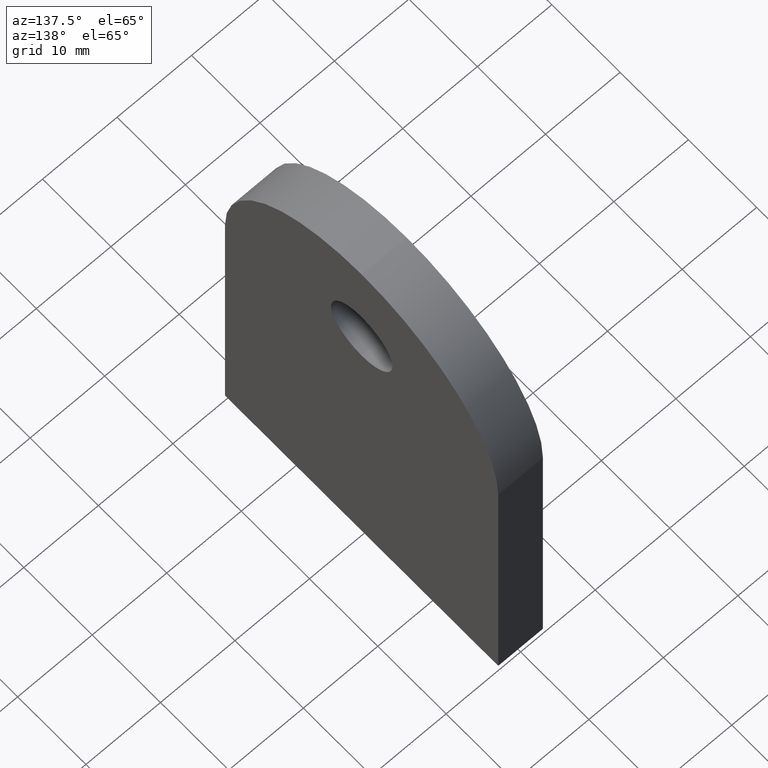
[diagram: clean part render]
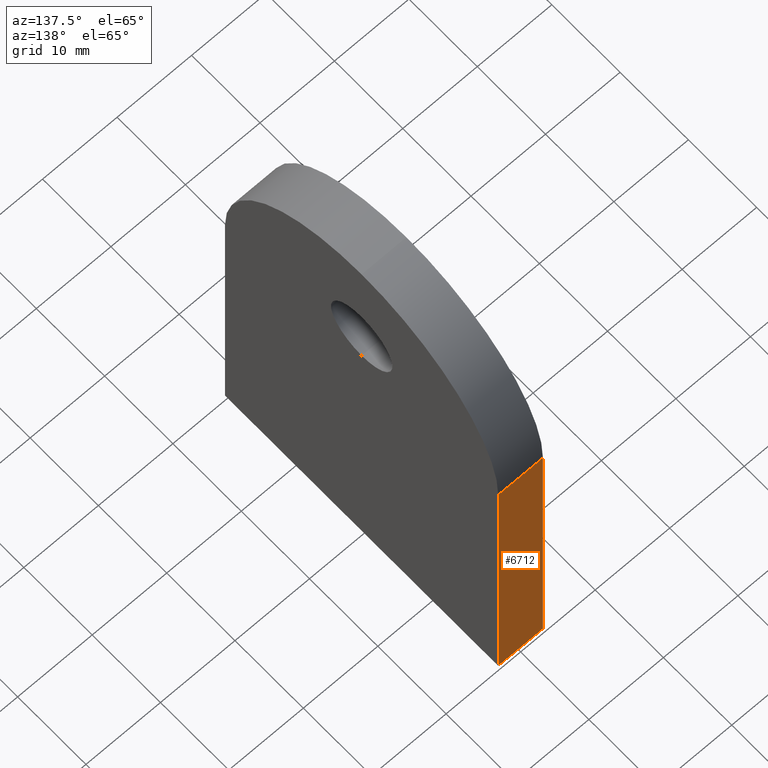
[diagram: same view with one face highlighted and labeled with its STEP entity id]
A machine part, auxiliary view. The second image highlights one B-rep face of the part: STEP entity #6712.
In plain terms, the highlighted planar face has unit normal (0, 1, -0).
Its self-contained STEP definition (entity closure, byte-faithful):
#1 = ORIENTED_EDGE ( 'NONE', *, *, #7337, .T. ) ;
#141 = LINE ( 'NONE', #9375, #1995 ) ;
#288 = PLANE ( 'NONE',  #7223 ) ;
#441 = DIRECTION ( 'NONE',  ( -1.000000000000000000, -0.0000000000000000000, -0.0000000000000000000 ) ) ;
#502 = CARTESIAN_POINT ( 'NONE',  ( 3.000000000000000000, 20.00000000000000400, 39.99999999999998600 ) ) ;
#664 = CARTESIAN_POINT ( 'NONE',  ( -3.000000000000000000, 20.00000000000000000, -4.286263797015736500E-015 ) ) ;
#1758 = EDGE_LOOP ( 'NONE', ( #8394, #8226, #1, #10344 ) ) ;
#1970 = VERTEX_POINT ( 'NONE', #5739 ) ;
#1995 = VECTOR ( 'NONE', #6920, 1000.000000000000000 ) ;
#2041 = CARTESIAN_POINT ( 'NONE',  ( 3.000000000000000000, 20.00000000000000400, 39.99999999999998600 ) ) ;
#2056 = DIRECTION ( 'NONE',  ( 0.0000000000000000000, 1.000000000000000000, -8.673617379884036700E-017 ) ) ;
#2065 = CARTESIAN_POINT ( 'NONE',  ( 3.000000000000000000, 20.00000000000000400, 39.99999999999998600 ) ) ;
#2183 = VERTEX_POINT ( 'NONE', #2065 ) ;
#2620 = LINE ( 'NONE', #6217, #7767 ) ;
#2939 = EDGE_CURVE ( 'NONE', #1970, #7553, #141, .T. ) ;
#4077 = CARTESIAN_POINT ( 'NONE',  ( 3.000000000000000000, 20.00000000000000000, -4.286263797015736500E-015 ) ) ;
#4193 = FACE_OUTER_BOUND ( 'NONE', #1758, .T. ) ;
#4322 = VECTOR ( 'NONE', #6415, 1000.000000000000000 ) ;
#4888 = EDGE_CURVE ( 'NONE', #5633, #7553, #2620, .T. ) ;
#5416 = LINE ( 'NONE', #2041, #6718 ) ;
#5633 = VERTEX_POINT ( 'NONE', #4077 ) ;
#5739 = CARTESIAN_POINT ( 'NONE',  ( -3.000000000000000000, 20.00000000000000400, 39.99999999999998600 ) ) ;
#6199 = DIRECTION ( 'NONE',  ( -1.000000000000000000, -0.0000000000000000000, -0.0000000000000000000 ) ) ;
#6217 = CARTESIAN_POINT ( 'NONE',  ( 3.000000000000000000, 20.00000000000000000, -4.286263797015736500E-015 ) ) ;
#6415 = DIRECTION ( 'NONE',  ( 0.0000000000000000000, -8.673617379884036700E-017, -1.000000000000000000 ) ) ;
#6712 = ADVANCED_FACE ( 'NONE', ( #4193 ), #288, .T. ) ;
#6718 = VECTOR ( 'NONE', #6199, 1000.000000000000000 ) ;
#6920 = DIRECTION ( 'NONE',  ( 0.0000000000000000000, -8.673617379884036700E-017, -1.000000000000000000 ) ) ;
#7223 = AXIS2_PLACEMENT_3D ( 'NONE', #8773, #2056, #7974 ) ;
#7337 = EDGE_CURVE ( 'NONE', #2183, #5633, #8278, .T. ) ;
#7553 = VERTEX_POINT ( 'NONE', #664 ) ;
#7767 = VECTOR ( 'NONE', #441, 1000.000000000000000 ) ;
#7974 = DIRECTION ( 'NONE',  ( 0.0000000000000000000, 8.673617379884036700E-017, 1.000000000000000000 ) ) ;
#8226 = ORIENTED_EDGE ( 'NONE', *, *, #10273, .F. ) ;
#8278 = LINE ( 'NONE', #502, #4322 ) ;
#8394 = ORIENTED_EDGE ( 'NONE', *, *, #2939, .F. ) ;
#8773 = CARTESIAN_POINT ( 'NONE',  ( 3.000000000000000000, 20.00000000000000400, 39.99999999999998600 ) ) ;
#9375 = CARTESIAN_POINT ( 'NONE',  ( -3.000000000000000000, 20.00000000000000400, 39.99999999999998600 ) ) ;
#10273 = EDGE_CURVE ( 'NONE', #2183, #1970, #5416, .T. ) ;
#10344 = ORIENTED_EDGE ( 'NONE', *, *, #4888, .T. ) ;